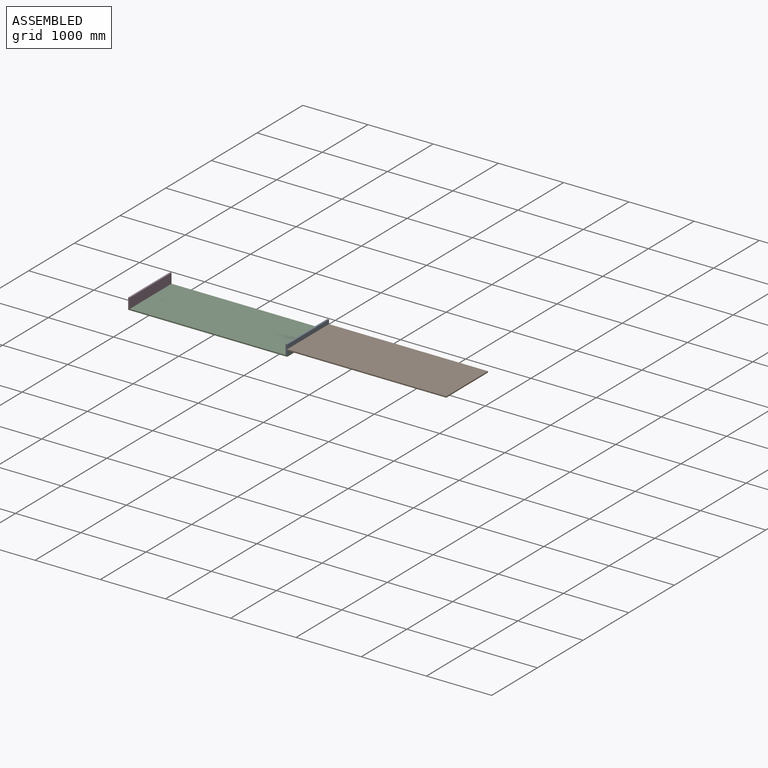
[diagram: assembled view]
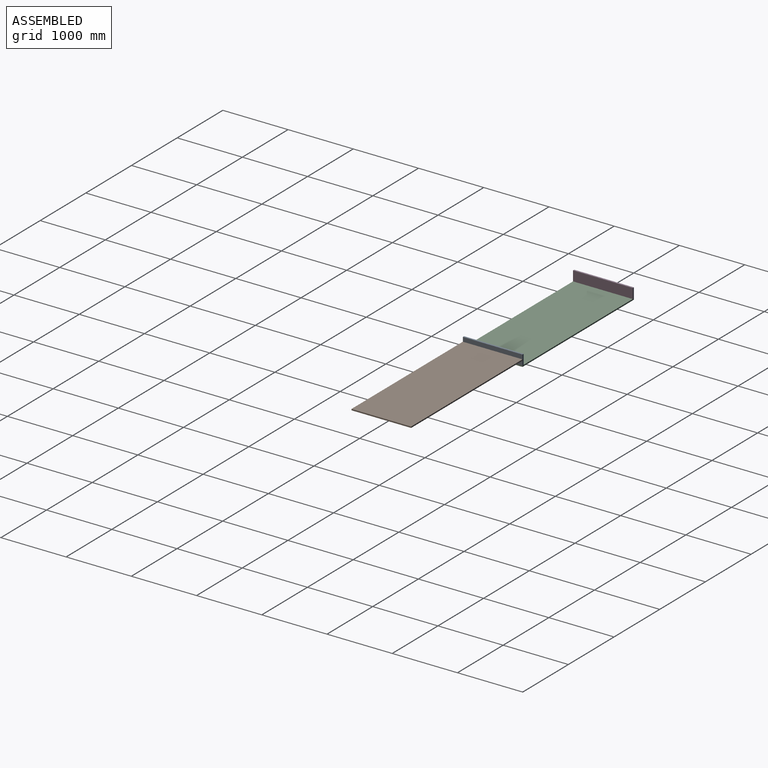
[diagram: assembled view, second angle]
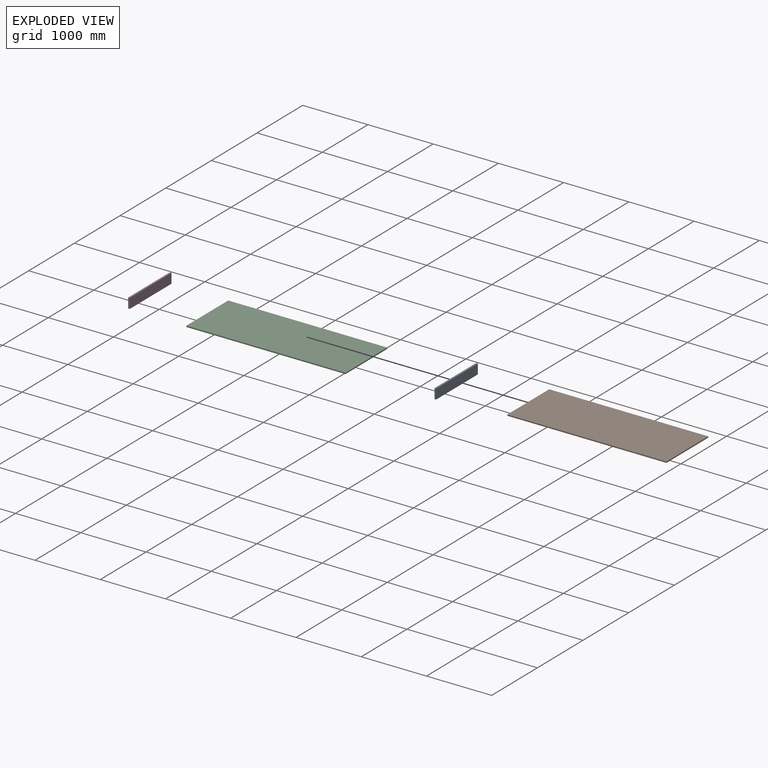
[diagram: exploded view]
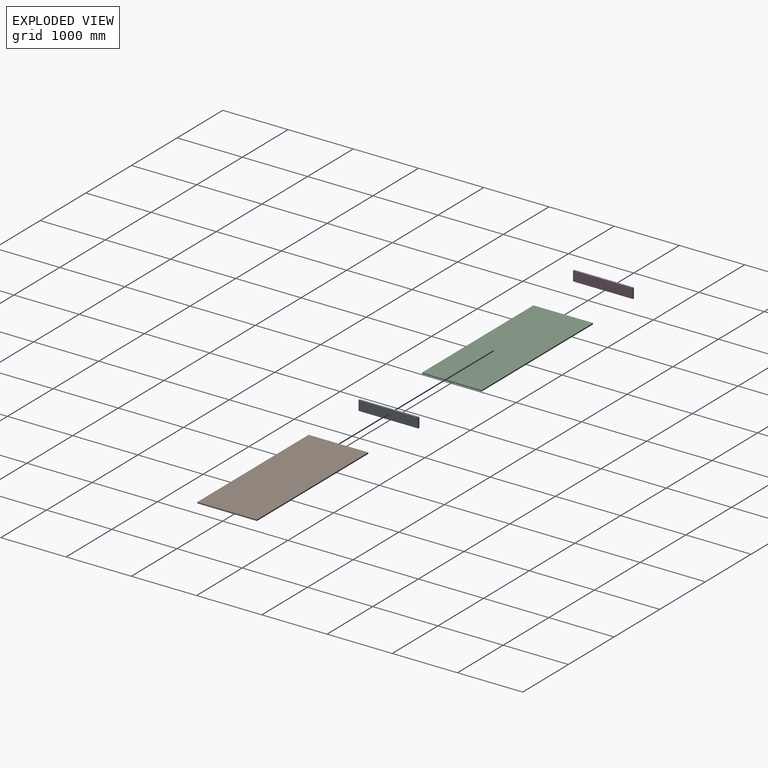
[diagram: exploded view, second angle]
ASSEMBLY  parts=4 mates=7
PART A: 6 faces, bbox 25.4x914.4x152.4 mm
  f0: plane 914.4x25.4mm, normal (0,0,-1), area 23225.8mm2, adj f1,f3,f4,f5
  f1: plane 152.4x25.4mm, normal (0,1,0), area 3871mm2, adj f0,f2,f4,f5
  f2: plane 914.4x25.4mm, normal (0,0,1), area 23225.8mm2, adj f1,f3,f4,f5
  f3: plane 152.4x25.4mm, normal (0,-1,0), area 3871mm2, adj f0,f2,f4,f5
  f4: plane 914.4x152.4mm, normal (1,0,0), area 139354.6mm2, adj f0,f1,f2,f3
  f5: plane 914.4x152.4mm, normal (-1,0,0), area 139354.6mm2, adj f0,f1,f2,f3
PART B: 6 faces, bbox 2438.4x914.4x19.1 mm
  f0: plane 914.4x19.05mm, normal (1,0,0), area 17419.3mm2, adj f1,f3,f4,f5
  f1: plane 2438.4x19.05mm, normal (0,1,0), area 46451.5mm2, adj f0,f2,f4,f5
  f2: plane 914.4x19.05mm, normal (-1,0,0), area 17419.3mm2, adj f1,f3,f4,f5
  f3: plane 2438.4x19.05mm, normal (0,-1,0), area 46451.5mm2, adj f0,f2,f4,f5
  f4: plane 2438.4x914.4mm, normal (0,0,1), area 2229673mm2, adj f0,f1,f2,f3
  f5: plane 2438.4x914.4mm, normal (0,0,-1), area 2229673mm2, adj f0,f1,f2,f3
PART C: same geometry as B
PART D: same geometry as A
PLACE A t=(1193.8,91.95,95.25)mm
PLACE B rot(axis=(0,1,0),180deg) t=(2438.4,91.95,104.78)mm
PLACE C t=(0,91.95,0)mm fixed
PLACE D t=(-1219.2,91.95,95.25)mm
MATE parallel D.f5 <-> C.f2  axis (-1,0,0) through (-1219.2,91.95,95.25)mm
MATE fastened D.f0 <-> C.f4  axis (0,0,-1) through (-1219.2,-365.25,19.05)mm
MATE planar A.f3 <-> C.f3  axis (0,-1,0) through (1206.5,-365.25,95.25)mm
MATE planar A.f4 <-> C.f0  axis (1,0,0) through (1219.2,91.95,95.25)mm
MATE planar C.f4 <-> A.f0  axis (0,0,1) through (0,91.95,19.05)mm
MATE parallel D.f3 <-> C.f3  axis (0,-1,0) through (-1206.5,-365.25,95.25)mm
MATE planar B.f0 <-> A.f4  axis (-1,0,0) through (1219.2,91.95,95.25)mm
